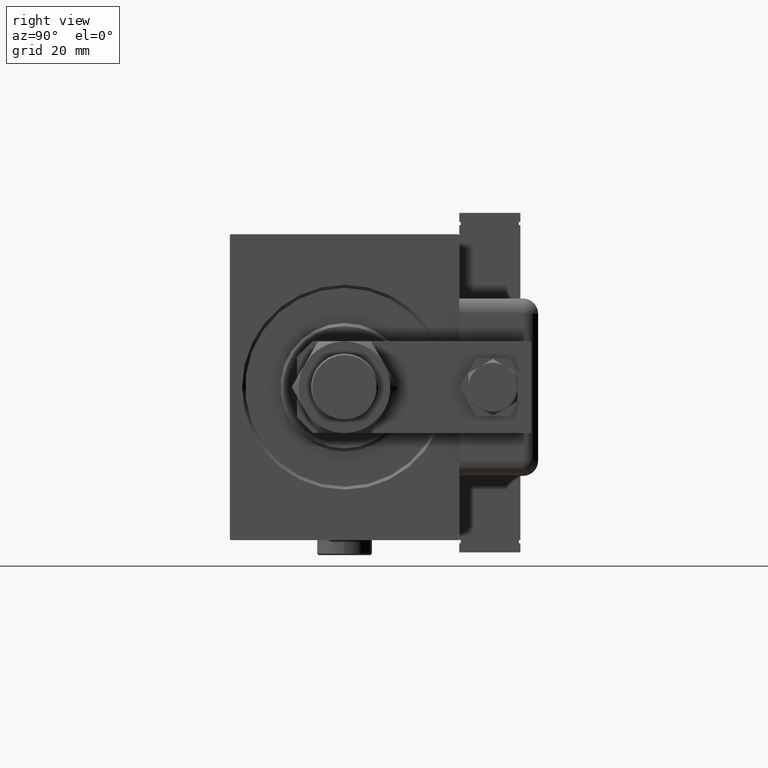
[diagram: clean part render]
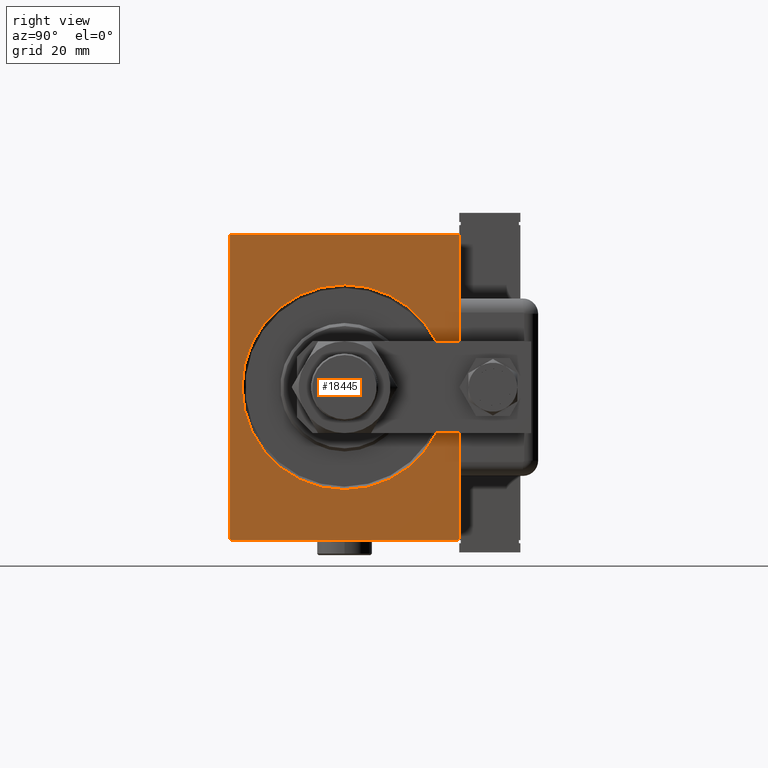
[diagram: same view with one face highlighted and labeled with its STEP entity id]
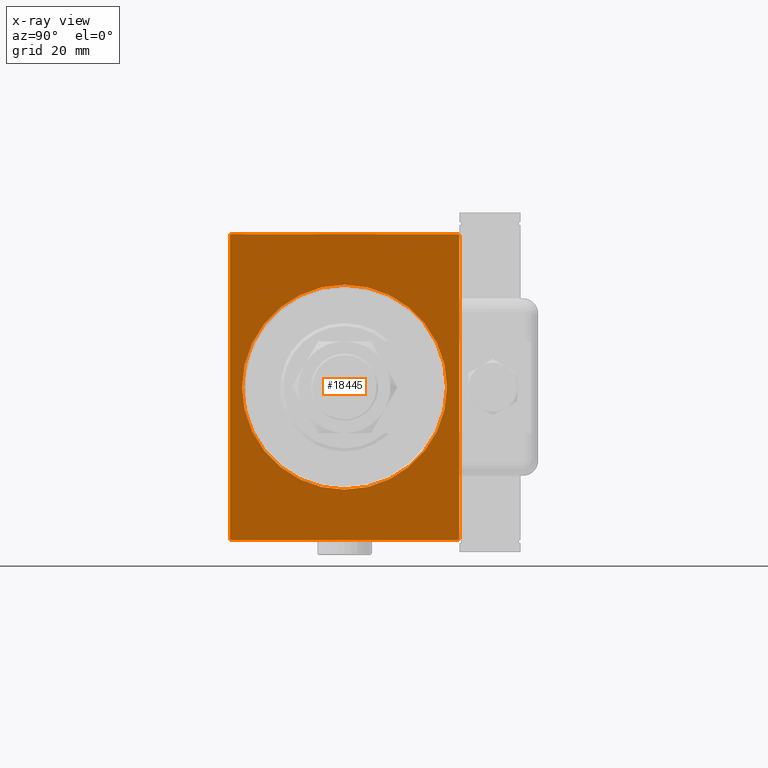
[diagram: x-ray of the same camera — body ghosted, the highlighted face saturated]
A machine part, right view. The second image highlights one B-rep face of the part: STEP entity #18445.
The next image is the same camera in x-ray: the body ghosted, the highlighted face saturated — about 0% of this face is hidden behind the body in this view.
In plain terms, the highlighted planar face has unit normal (-1, 0, 0).
Its self-contained STEP definition (entity closure, byte-faithful):
#56 = CARTESIAN_POINT ( 'NONE',  ( 0.000000000000000000, -37.19999999999996732, 50.00000000000000000 ) ) ;
#1038 = EDGE_CURVE ( 'NONE', #12441, #19559, #4862, .T. ) ;
#2055 = VECTOR ( 'NONE', #22245, 1000.000000000000000 ) ;
#2116 = VECTOR ( 'NONE', #10448, 1000.000000000000000 ) ;
#3270 = CARTESIAN_POINT ( 'NONE',  ( 0.000000000000000000, -37.50000000000000000, -50.00000000000001421 ) ) ;
#3826 = CARTESIAN_POINT ( 'NONE',  ( 0.000000000000000000, 37.49999999999999289, 49.70000000000000284 ) ) ;
#4862 = LINE ( 'NONE', #24151, #2116 ) ;
#8174 = FACE_OUTER_BOUND ( 'NONE', #44691, .T. ) ;
#9664 = VERTEX_POINT ( 'NONE', #44216 ) ;
#10245 = DIRECTION ( 'NONE',  ( -0.000000000000000000, 0.7071067811865392461, -0.7071067811865556774 ) ) ;
#10448 = DIRECTION ( 'NONE',  ( 0.000000000000000000, -1.387778780781445182E-16, 1.000000000000000000 ) ) ;
#10656 = VERTEX_POINT ( 'NONE', #26509 ) ;
#11604 = CIRCLE ( 'NONE', #22538, 33.49999999999998579 ) ;
#12441 = VERTEX_POINT ( 'NONE', #36724 ) ;
#13148 = DIRECTION ( 'NONE',  ( 0.000000000000000000, 0.000000000000000000, -1.000000000000000000 ) ) ;
#13979 = CARTESIAN_POINT ( 'NONE',  ( 0.000000000000000000, 37.49999999999999289, 50.00000000000001421 ) ) ;
#15300 = EDGE_CURVE ( 'NONE', #42924, #57962, #35365, .T. ) ;
#16026 = AXIS2_PLACEMENT_3D ( 'NONE', #51437, #17813, #13148 ) ;
#16865 = EDGE_CURVE ( 'NONE', #10656, #24415, #18335, .T. ) ;
#16926 = ORIENTED_EDGE ( 'NONE', *, *, #50544, .T. ) ;
#17030 = ORIENTED_EDGE ( 'NONE', *, *, #40845, .T. ) ;
#17813 = DIRECTION ( 'NONE',  ( 1.000000000000000000, 0.000000000000000000, 0.000000000000000000 ) ) ;
#18335 = LINE ( 'NONE', #13979, #42100 ) ;
#18445 = ADVANCED_FACE ( 'NONE', ( #37100, #8174 ), #60445, .F. ) ;
#19559 = VERTEX_POINT ( 'NONE', #3826 ) ;
#19833 = LINE ( 'NONE', #25132, #27050 ) ;
#20424 = EDGE_CURVE ( 'NONE', #42924, #24415, #23501, .T. ) ;
#21260 = EDGE_CURVE ( 'NONE', #49384, #57962, #19833, .T. ) ;
#22245 = DIRECTION ( 'NONE',  ( 0.000000000000000000, 1.000000000000000000, 9.251858538542970348E-17 ) ) ;
#22538 = AXIS2_PLACEMENT_3D ( 'NONE', #37246, #56538, #27914 ) ;
#23501 = LINE ( 'NONE', #37795, #38939 ) ;
#24151 = CARTESIAN_POINT ( 'NONE',  ( 0.000000000000000000, 37.50000000000000711, -50.00000000000000711 ) ) ;
#24207 = VERTEX_POINT ( 'NONE', #57133 ) ;
#24415 = VERTEX_POINT ( 'NONE', #56 ) ;
#24497 = CARTESIAN_POINT ( 'NONE',  ( 0.000000000000000000, 0.000000000000000000, 0.000000000000000000 ) ) ;
#25128 = CARTESIAN_POINT ( 'NONE',  ( 0.000000000000000000, -37.50000000000000000, 50.00000000000000000 ) ) ;
#25132 = CARTESIAN_POINT ( 'NONE',  ( 0.000000000000000000, -37.19999999999997442, -50.00000000000001421 ) ) ;
#25738 = DIRECTION ( 'NONE',  ( -0.000000000000000000, -0.7071067811865474617, 0.7071067811865474617 ) ) ;
#26509 = CARTESIAN_POINT ( 'NONE',  ( 0.000000000000000000, 37.19999999999998153, 50.00000000000001421 ) ) ;
#26574 = EDGE_LOOP ( 'NONE', ( #16926, #17030 ) ) ;
#26919 = LINE ( 'NONE', #3270, #2055 ) ;
#27050 = VECTOR ( 'NONE', #25738, 1000.000000000000114 ) ;
#27238 = ORIENTED_EDGE ( 'NONE', *, *, #41668, .T. ) ;
#27914 = DIRECTION ( 'NONE',  ( 0.000000000000000000, 0.000000000000000000, -1.000000000000000000 ) ) ;
#28124 = AXIS2_PLACEMENT_3D ( 'NONE', #24497, #38485, #38178 ) ;
#30842 = CARTESIAN_POINT ( 'NONE',  ( 0.000000000000000000, -37.19999999999997442, -50.00000000000001421 ) ) ;
#32941 = DIRECTION ( 'NONE',  ( 0.000000000000000000, -1.000000000000000000, -1.850371707708594563E-16 ) ) ;
#33740 = DIRECTION ( 'NONE',  ( -0.000000000000000000, 0.7071067811865556774, 0.7071067811865392461 ) ) ;
#35365 = LINE ( 'NONE', #25128, #36251 ) ;
#35884 = ORIENTED_EDGE ( 'NONE', *, *, #20424, .T. ) ;
#36022 = ORIENTED_EDGE ( 'NONE', *, *, #59254, .F. ) ;
#36251 = VECTOR ( 'NONE', #40628, 1000.000000000000000 ) ;
#36724 = CARTESIAN_POINT ( 'NONE',  ( 0.000000000000000000, 37.50000000000000711, -49.70000000000000284 ) ) ;
#37100 = FACE_BOUND ( 'NONE', #26574, .T. ) ;
#37246 = CARTESIAN_POINT ( 'NONE',  ( 0.000000000000000000, 0.000000000000000000, 0.000000000000000000 ) ) ;
#37597 = EDGE_CURVE ( 'NONE', #10656, #19559, #58174, .T. ) ;
#37795 = CARTESIAN_POINT ( 'NONE',  ( 0.000000000000000000, -37.50000000000000000, 49.69999999999998153 ) ) ;
#38178 = DIRECTION ( 'NONE',  ( 0.000000000000000000, 0.000000000000000000, -1.000000000000000000 ) ) ;
#38485 = DIRECTION ( 'NONE',  ( 1.000000000000000000, 0.000000000000000000, 0.000000000000000000 ) ) ;
#38831 = CARTESIAN_POINT ( 'NONE',  ( 0.000000000000000000, 37.19999999999998863, -50.00000000000000711 ) ) ;
#38890 = ORIENTED_EDGE ( 'NONE', *, *, #21260, .T. ) ;
#38939 = VECTOR ( 'NONE', #33740, 1000.000000000000114 ) ;
#39197 = ORIENTED_EDGE ( 'NONE', *, *, #15300, .F. ) ;
#40385 = LINE ( 'NONE', #59680, #43680 ) ;
#40628 = DIRECTION ( 'NONE',  ( 0.000000000000000000, 0.000000000000000000, -1.000000000000000000 ) ) ;
#40845 = EDGE_CURVE ( 'NONE', #9664, #24207, #52977, .T. ) ;
#41668 = EDGE_CURVE ( 'NONE', #12441, #53655, #40385, .T. ) ;
#42100 = VECTOR ( 'NONE', #32941, 1000.000000000000000 ) ;
#42924 = VERTEX_POINT ( 'NONE', #54657 ) ;
#43680 = VECTOR ( 'NONE', #45363, 1000.000000000000114 ) ;
#44216 = CARTESIAN_POINT ( 'NONE',  ( 0.000000000000000000, 4.102566777143632196E-15, -33.49999999999998579 ) ) ;
#44691 = EDGE_LOOP ( 'NONE', ( #55982, #53694, #56375, #27238, #36022, #38890, #39197, #35884 ) ) ;
#45363 = DIRECTION ( 'NONE',  ( 0.000000000000000000, -0.7071067811865556774, -0.7071067811865392461 ) ) ;
#46631 = CARTESIAN_POINT ( 'NONE',  ( 0.000000000000000000, -37.50000000000000000, -49.69999999999999574 ) ) ;
#49384 = VERTEX_POINT ( 'NONE', #30842 ) ;
#50544 = EDGE_CURVE ( 'NONE', #24207, #9664, #11604, .T. ) ;
#51437 = CARTESIAN_POINT ( 'NONE',  ( 0.000000000000000000, 0.000000000000000000, 0.000000000000000000 ) ) ;
#52977 = CIRCLE ( 'NONE', #28124, 33.49999999999998579 ) ;
#53506 = CARTESIAN_POINT ( 'NONE',  ( 0.000000000000000000, 37.19999999999998153, 50.00000000000001421 ) ) ;
#53655 = VERTEX_POINT ( 'NONE', #38831 ) ;
#53694 = ORIENTED_EDGE ( 'NONE', *, *, #37597, .T. ) ;
#54657 = CARTESIAN_POINT ( 'NONE',  ( 0.000000000000000000, -37.50000000000000000, 49.69999999999998153 ) ) ;
#55982 = ORIENTED_EDGE ( 'NONE', *, *, #16865, .F. ) ;
#56375 = ORIENTED_EDGE ( 'NONE', *, *, #1038, .F. ) ;
#56538 = DIRECTION ( 'NONE',  ( 1.000000000000000000, 0.000000000000000000, 0.000000000000000000 ) ) ;
#57133 = CARTESIAN_POINT ( 'NONE',  ( 0.000000000000000000, 0.000000000000000000, 33.49999999999998579 ) ) ;
#57962 = VERTEX_POINT ( 'NONE', #46631 ) ;
#58174 = LINE ( 'NONE', #53506, #60130 ) ;
#59254 = EDGE_CURVE ( 'NONE', #49384, #53655, #26919, .T. ) ;
#59680 = CARTESIAN_POINT ( 'NONE',  ( 0.000000000000000000, 37.50000000000000711, -49.70000000000000284 ) ) ;
#60130 = VECTOR ( 'NONE', #10245, 1000.000000000000114 ) ;
#60445 = PLANE ( 'NONE',  #16026 ) ;